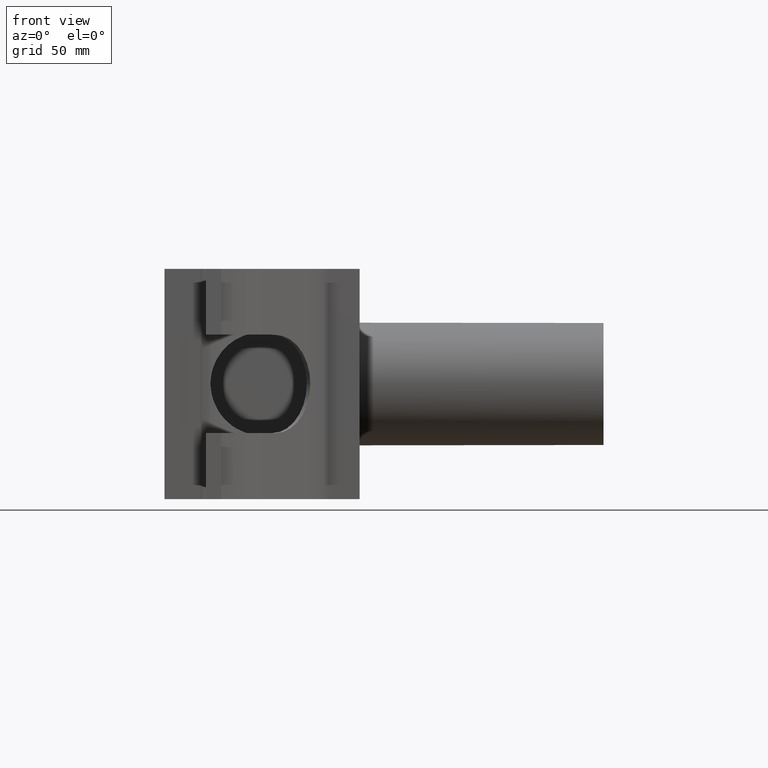
[diagram: clean part render]
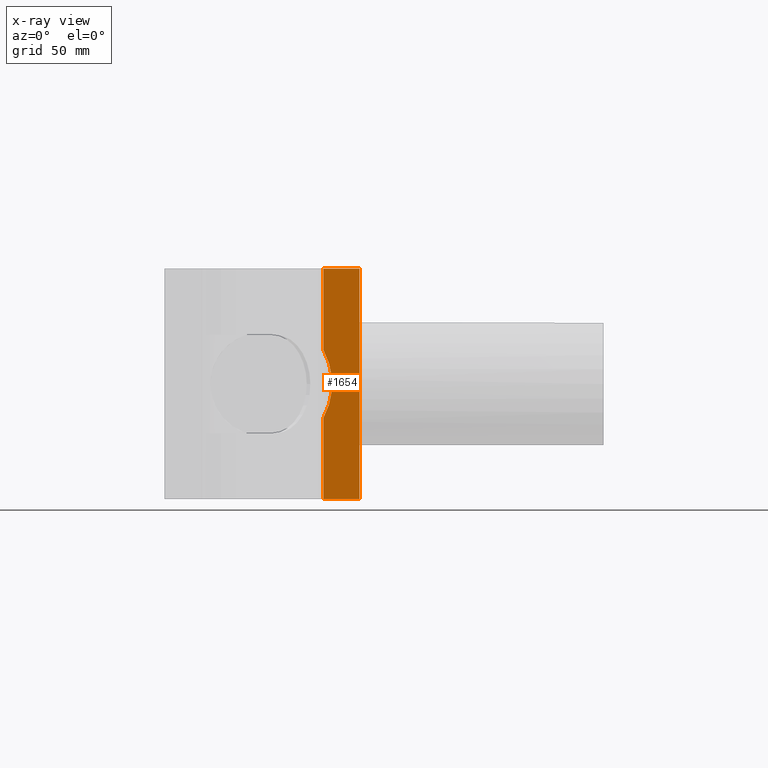
[diagram: x-ray — body ghosted, one internal face saturated and labeled with its STEP entity id]
A machine part, front view, then the same camera in x-ray: the body is ghosted and one INTERNAL B-rep face — a face not visible from any outside direction — is saturated and labeled: STEP entity #1654.
In plain terms, the highlighted planar face has unit normal (0, 1, 0).
Its self-contained STEP definition (entity closure, byte-faithful):
#93=LINE('',#2948,#232);
#94=LINE('',#2950,#233);
#95=LINE('',#2952,#234);
#96=LINE('',#2954,#235);
#97=LINE('',#2955,#236);
#232=VECTOR('',#2143,41.7581729506339);
#233=VECTOR('',#2144,18.5000396825647);
#234=VECTOR('',#2145,118.);
#235=VECTOR('',#2146,18.5000396825647);
#236=VECTOR('',#2147,41.7581729506339);
#440=FACE_OUTER_BOUND('',#562,.T.);
#562=EDGE_LOOP('',(#1296,#1297,#1298,#1299,#1300,#1301));
#633=CIRCLE('',#1716,35.91);
#711=VERTEX_POINT('',#2609);
#712=VERTEX_POINT('',#2610);
#782=VERTEX_POINT('',#2947);
#783=VERTEX_POINT('',#2949);
#784=VERTEX_POINT('',#2951);
#785=VERTEX_POINT('',#2953);
#866=EDGE_CURVE('',#711,#712,#633,.T.);
#972=EDGE_CURVE('',#782,#712,#93,.T.);
#973=EDGE_CURVE('',#783,#782,#94,.T.);
#974=EDGE_CURVE('',#784,#783,#95,.T.);
#975=EDGE_CURVE('',#785,#784,#96,.T.);
#976=EDGE_CURVE('',#711,#785,#97,.T.);
#1296=ORIENTED_EDGE('',*,*,#866,.T.);
#1297=ORIENTED_EDGE('',*,*,#972,.F.);
#1298=ORIENTED_EDGE('',*,*,#973,.F.);
#1299=ORIENTED_EDGE('',*,*,#974,.F.);
#1300=ORIENTED_EDGE('',*,*,#975,.F.);
#1301=ORIENTED_EDGE('',*,*,#976,.F.);
#1568=PLANE('',#1803);
#1654=ADVANCED_FACE('',(#440),#1568,.F.);
#1716=AXIS2_PLACEMENT_3D('',#2611,#1904,#1905);
#1803=AXIS2_PLACEMENT_3D('',#2946,#2141,#2142);
#1904=DIRECTION('center_axis',(3.46944695195361E-19,1.,0.));
#1905=DIRECTION('ref_axis',(0.,0.,1.));
#2141=DIRECTION('center_axis',(3.46944695195361E-19,1.,0.));
#2142=DIRECTION('ref_axis',(-1.,6.93889390390723E-19,0.));
#2143=DIRECTION('',(0.,0.,1.));
#2144=DIRECTION('',(-1.,3.46944695195361E-19,0.));
#2145=DIRECTION('',(0.,0.,-1.));
#2146=DIRECTION('',(1.,-3.46944695195361E-19,0.));
#2147=DIRECTION('',(0.,0.,1.));
#2609=CARTESIAN_POINT('',(31.4999603174313,0.0500000012689378,17.2418270493661));
#2610=CARTESIAN_POINT('',(31.4999603174313,0.0500000012689378,-17.2418270493661));
#2611=CARTESIAN_POINT('Origin',(0.,0.0499999999999901,-9.62878545829606E-15));
#2946=CARTESIAN_POINT('Origin',(50.,0.0500000000000078,-59.));
#2947=CARTESIAN_POINT('',(31.4999603174353,0.0500000000000078,-59.));
#2948=CARTESIAN_POINT('',(31.4999603174353,0.0500000000000078,0.));
#2949=CARTESIAN_POINT('',(50.,0.0500000000000078,-59.));
#2950=CARTESIAN_POINT('',(2.18899653099834,0.0500000000000078,-59.));
#2951=CARTESIAN_POINT('',(50.,0.0500000000000078,59.));
#2952=CARTESIAN_POINT('',(50.,0.0500000000000078,-29.5));
#2953=CARTESIAN_POINT('',(31.4999603174353,0.0500000000000078,59.));
#2954=CARTESIAN_POINT('',(2.18899653099834,0.0500000000000078,59.));
#2955=CARTESIAN_POINT('',(31.4999603174353,0.0500000000000078,0.));